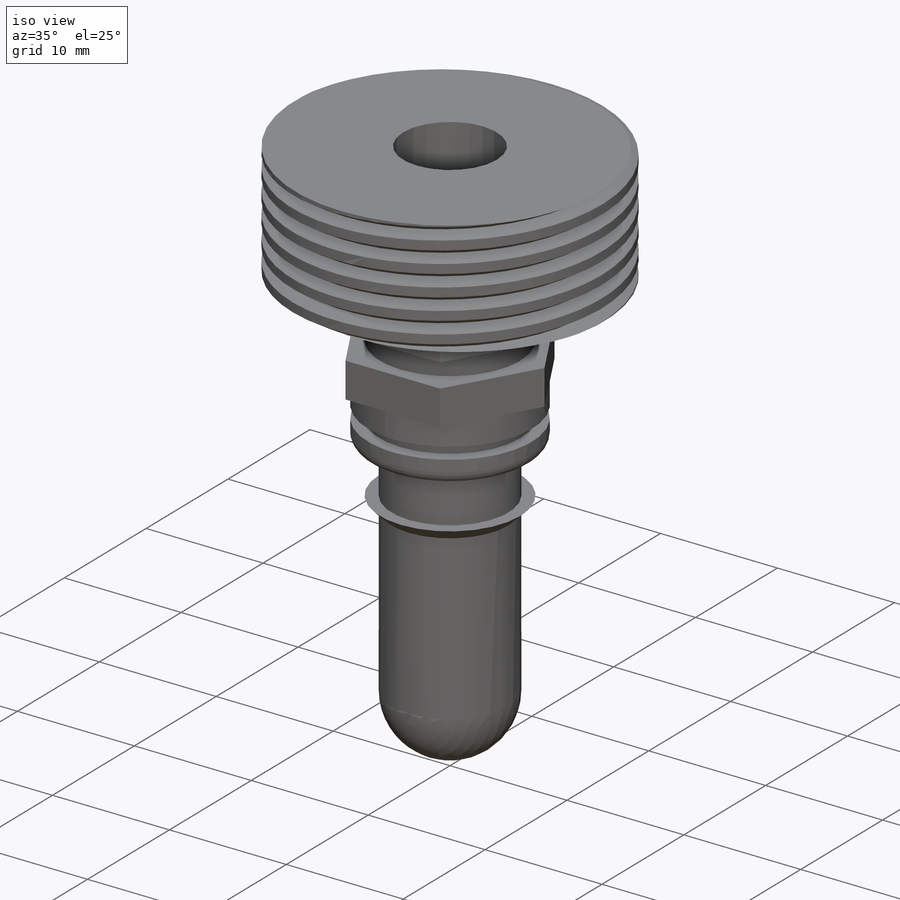
[diagram: iso view]
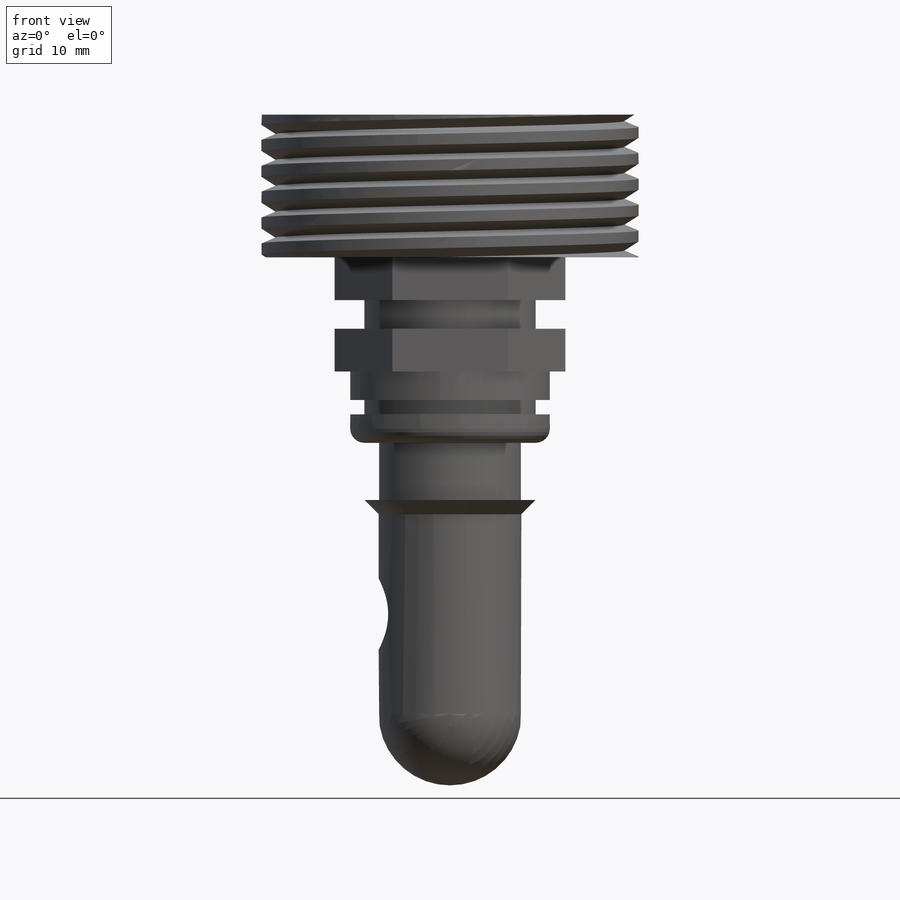
[diagram: front view]
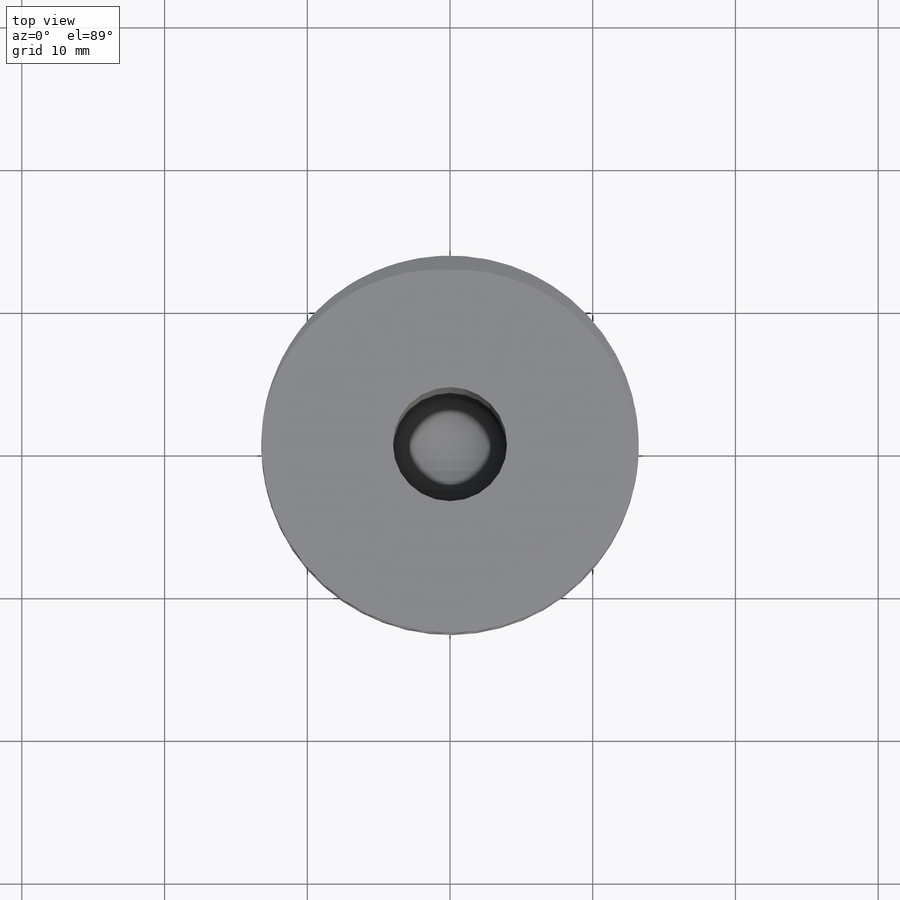
[diagram: top view]
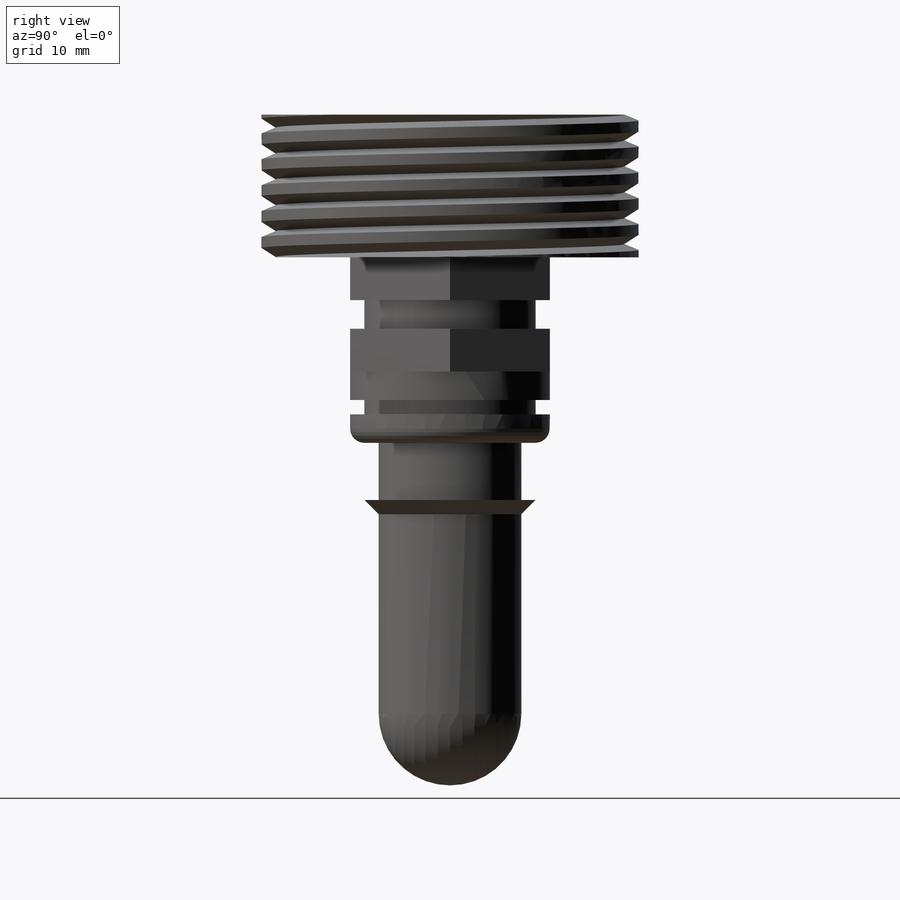
[diagram: right view]
SOLIDWORKS PART (.sldprt)
format: sldprt  version: not decoded by parser v0  size: 510,976 bytes
history: native  units: mm
features: sketch x14, extrude x10, plane x3, dome x2, cut_extrude x2, material x1, chamfer x1, fillet x1, helix x1, sweep x1 (+8 scaffold rows collapsed)
feature tree (44):
  scaffold x8  (default folders/planes/origin — collapsed)
  material  "Material <nicht festgelegt>"
  plane  "Ebene vorne"
  plane  "Ebene oben"
  plane  "Ebene rechts"
  sketch  "Skizze1"  dims[D1=~17.413163mm]
  extrude  "Aufsatz-Linear austragen1"  Depth=14mm
  dome  "Kuppel1"
  sketch  "Skizze2"  dims[D1=7.0mm]
  extrude  "Aufsatz-Linear austragen2"  Depth=1mm
  chamfer  "Fase1"  Distance=1mm Angle=45deg
  sketch  "Skizze3"  dims[D1=~5.36234mm]
  extrude  "Aufsatz-Linear austragen3"  Depth=4mm
  sketch  "Skizze4"  dims[D1=5.0mm]
  cut_extrude  "Schnitt-Linear austragen1"  [1 undecoded]
  sketch  "Skizze6"  dims[D1=8.0mm]
  extrude  "Aufsatz-Linear austragen4"  Depth=2mm
  fillet  "Verrundung1"  Radius=1mm
  sketch  "Skizze7"  dims[D1=~5.403001mm]
  extrude  "Aufsatz-Linear austragen5"  Depth=1mm
  sketch  "Skizze8"  dims[D1=6.0mm]
  extrude  "Aufsatz-Linear austragen6"  Depth=2mm
  sketch  "Skizze9"
  extrude  "Aufsatz-Linear austragen7"  Depth=3mm
  sketch  "Skizze10"  dims[D1=~5.266079mm]
  extrude  "Aufsatz-Linear austragen8"  Depth=2mm
  sketch  "Skizze11"
  extrude  "Aufsatz-Linear austragen9"  Depth=3mm
  sketch  "Skizze12"  dims[D1=12.0mm]
  extrude  "Aufsatz-Linear austragen10"  Depth=10mm
  sketch  "Skizze16"  dims[D1=~5.983127mm]
  cut_extrude  "Schnitt-Linear austragen3"  Depth=42mm
  dome  "Kuppel3"
  sketch  "Skizze21"  dims[c1.D1=0.0mm c1.D2=~1.554614mm c2.D2=55.0deg c2.D3=1.0mm]
  sketch  "Skizze22"
  helix  "Spirale/Helix2"  Pitch=10.884mm
  sweep  "Schnitt-Austragung5"
decode coverage: 25 of 32 modeling features carry decoded parameters
note: ~ marks probable driven/reference dimensions
note: 1 parameter value undecoded
note: suppression state not decoded; provenance and decode notes live in map.json
